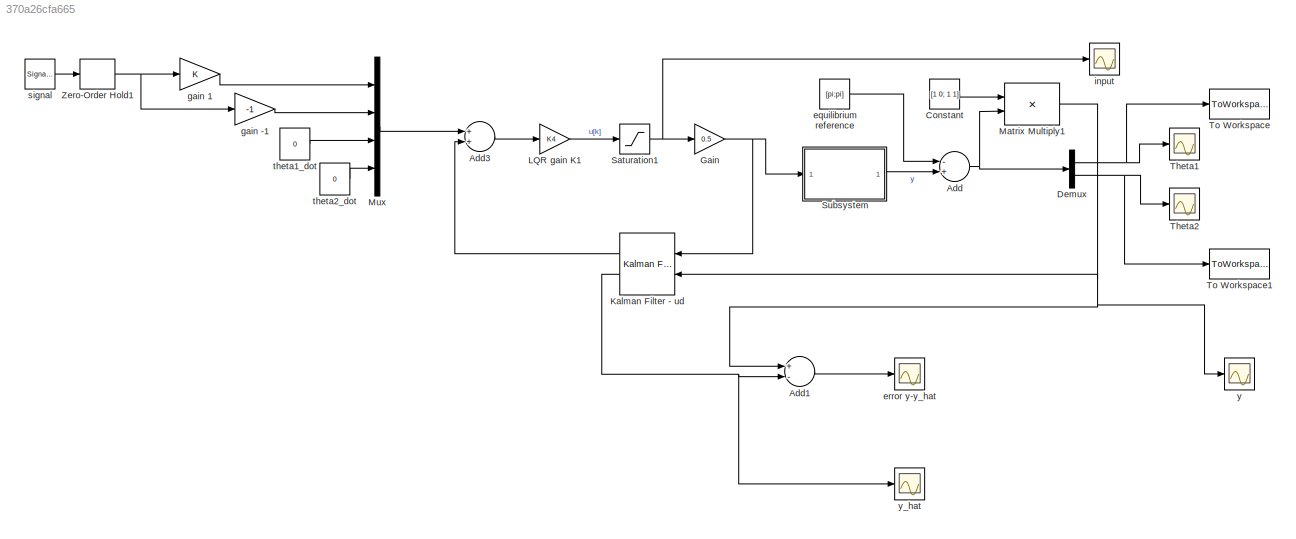
MODEL slx_370a26cfa665
KIND model
CONFIG AbsTol = auto
CONFIG EnableMultiTasking = on
CONFIG FixedStep = auto
CONFIG InitFcn = lin_discr_model_test
CONFIG MaxStep = auto
CONFIG MinStep = auto
CONFIG RelTol = 1e-3
CONFIG SampleTimeConstraint = Unconstrained
CONFIG Solver = ode45
CONFIG SolverName = ode45
CONFIG StartTime = 0.0
CONFIG StopTime = 10
BLOCK [Sum] Add
  InputSameDT = off
  Inputs = -+
  OutDataTypeStr = Inherit: Inherit via internal rule
  Ports = [2, 1]
  SaturateOnIntegerOverflow = off
BLOCK [Sum] Add1
  InputSameDT = off
  Inputs = +-
  OutDataTypeStr = Inherit: Inherit via internal rule
  Ports = [2, 1]
  SaturateOnIntegerOverflow = off
BLOCK [Sum] Add3
  InputSameDT = off
  OutDataTypeStr = Inherit: Inherit via internal rule
  Ports = [2, 1]
  SaturateOnIntegerOverflow = off
BLOCK [Constant] Constant
  Value = [1 0; 1 1]
BLOCK [Demux] Demux
  DisplayOption = bar
  Outputs = 2
  Ports = [1, 2]
BLOCK [Gain] Gain
  Gain = 0.5
  OutDataTypeStr = Inherit: Inherit via internal rule
  ParamDataTypeStr = Inherit: Inherit via internal rule
  SaturateOnIntegerOverflow = off
BLOCK [Reference] Kalman Filter - ud  REF=ctrlSharedLib/Kalman Filter
  Ports = [2, 2]
  SourceBlock = ctrlSharedLib/Kalman Filter
  SourceType = ctrlKalmanFilter
BLOCK [Gain] LQR gain K1
  Gain = K4
  Multiplication = Matrix(K*u)
  OutDataTypeStr = Inherit: Inherit via internal rule
  ParamDataTypeStr = Inherit: Inherit via internal rule
  SaturateOnIntegerOverflow = off
BLOCK [Product] Matrix Multiply1
  InputSameDT = off
  Multiplication = Matrix(*)
  OutDataTypeStr = Inherit: Inherit via internal rule
  Ports = [2, 1]
  RndMeth = Floor
  SaturateOnIntegerOverflow = off
BLOCK [Mux] Mux
  DisplayOption = bar
  Ports = [4, 1]
BLOCK [Saturate] Saturation1
  InputPortMap = u0
  LowerLimit = -1
  Ports = [1, 1]
  UpperLimit = 1
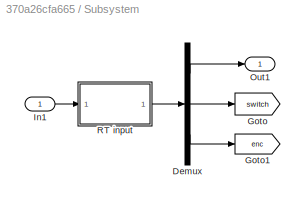
BLOCK [SubSystem] Subsystem
  Ports = [1, 1]
  RequestExecContextInheritance = off
  Variant = off
BLOCK [Demux] Subsystem/Demux
  DisplayOption = bar
  Outputs = [2 4 1]
  Ports = [1, 3]
BLOCK [Goto] Subsystem/Goto
  GotoTag = switch
  TagVisibility = global
BLOCK [Goto] Subsystem/Goto1
  GotoTag = enc
  TagVisibility = global
BLOCK [Inport] Subsystem/In1
  IconDisplay = Port number
BLOCK [Outport] Subsystem/Out1
  IconDisplay = Port number
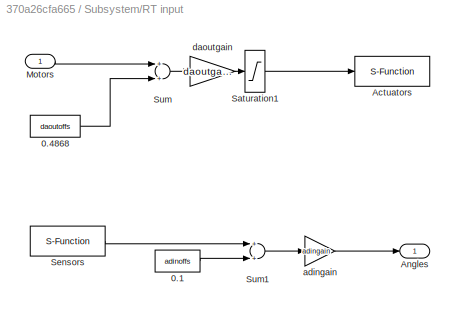
BLOCK [SubSystem] Subsystem/RT input
  Ports = [1, 1]
  RequestExecContextInheritance = off
  Variant = off
BLOCK [Constant] Subsystem/RT input/0.1
  Value = adinoffs
BLOCK [Constant] Subsystem/RT input/0.4868
  Value = daoutoffs
BLOCK [S-Function] Subsystem/RT input/Actuators
  EnableBusSupport = off
  FunctionName = sfusbout
  Parameters = Ts, fugihandle
  Ports = [1]
  SFcnIsStateOwnerBlock = off
  SFunctionDeploymentMode = off
BLOCK [Outport] Subsystem/RT input/Angles
  IconDisplay = Port number
BLOCK [Inport] Subsystem/RT input/Motors
  IconDisplay = Port number
BLOCK [Saturate] Subsystem/RT input/Saturation1
  InputPortMap = u0
  LowerLimit = -10
  Ports = [1, 1]
  UpperLimit = 10
BLOCK [S-Function] Subsystem/RT input/Sensors
  EnableBusSupport = off
  FunctionName = sfusbin
  Parameters = Ts, fugihandle, channels
  Ports = [0, 1]
  SFcnIsStateOwnerBlock = off
  SFunctionDeploymentMode = off
BLOCK [Sum] Subsystem/RT input/Sum
  Ports = [2, 1]
BLOCK [Sum] Subsystem/RT input/Sum1
  Ports = [2, 1]
BLOCK [Gain] Subsystem/RT input/adingain
  Gain = adingain
BLOCK [Gain] Subsystem/RT input/daoutgain
  Gain = daoutgain
BLOCK [Scope] Theta1
  NumInputPorts = 1
  Ports = [1]
  ScopeSpecificationString = Simulink.scopes.TimeScopeBlockCfg('CurrentConfiguration', extmgr.ConfigurationSet(extmgr.Configuration('Core','General UI',true),extmgr.Configuration('Core','Source UI',true),extmgr.Configuration('Sources','WiredSimulink',true,'DataLoggingVariableName','ScopeData1','DataLoggingSaveFormat','StructureWithTime','DataLoggingLimitDataPoints',true,'DataLoggingDecimation','1','DataLoggingDecimateData',tr...<+1732ch>
BLOCK [Scope] Theta2
  NumInputPorts = 1
  Ports = [1]
  ScopeSpecificationString = Simulink.scopes.TimeScopeBlockCfg('CurrentConfiguration', extmgr.ConfigurationSet(extmgr.Configuration('Core','General UI',true),extmgr.Configuration('Core','Source UI',true),extmgr.Configuration('Sources','WiredSimulink',true,'DataLoggingVariableName','ScopeData2','DataLoggingSaveFormat','StructureWithTime','DataLoggingLimitDataPoints',true,'DataLoggingDecimation','1','DataLoggingDecimateData',tr...<+1704ch>
BLOCK [ToWorkspace] To Workspace
  FixptAsFi = on
  MaxDataPoints = inf
  Ports = [1]
  SampleTime = -1
  Save2DSignal = 3-D array (concatenate along third dimension)
  SaveFormat = Timeseries
  VariableName = theta1
BLOCK [ToWorkspace] To Workspace1
  FixptAsFi = on
  MaxDataPoints = inf
  Ports = [1]
  SampleTime = -1
  Save2DSignal = 3-D array (concatenate along third dimension)
  SaveFormat = Timeseries
  VariableName = theta2
BLOCK [ZeroOrderHold] Zero-Order Hold1
  SampleTime = Ts
BLOCK [Constant] equilibrium reference
  SampleTime = Ts
  Value = [pi;pi]
BLOCK [Scope] error y-y_hat
  NumInputPorts = 1
  Ports = [1]
  ScopeSpecificationString = Simulink.scopes.TimeScopeBlockCfg('CurrentConfiguration', extmgr.ConfigurationSet(extmgr.Configuration('Core','General UI',true),extmgr.Configuration('Core','Source UI',true),extmgr.Configuration('Sources','WiredSimulink',true,'DataLoggingVariableName','ScopeData2'),extmgr.Configuration('Visuals','Time Domain',true,'SerializedDisplays',{struct('MinYLimReal','-0.73877','MaxYLimReal','0.51808','YLab...<+1445ch>
BLOCK [Gain] gain -1
  Gain = -1
  Multiplication = Matrix(K*u)
  OutDataTypeStr = Inherit: Inherit via internal rule
  ParamDataTypeStr = Inherit: Inherit via internal rule
  SaturateOnIntegerOverflow = off
BLOCK [Gain] gain 1
  Multiplication = Matrix(K*u)
  OutDataTypeStr = Inherit: Inherit via internal rule
  ParamDataTypeStr = Inherit: Inherit via internal rule
  SaturateOnIntegerOverflow = off
BLOCK [Scope] input
  NumInputPorts = 1
  Ports = [1]
  ScopeSpecificationString = Simulink.scopes.TimeScopeBlockCfg('CurrentConfiguration', extmgr.ConfigurationSet(extmgr.Configuration('Core','General UI',true),extmgr.Configuration('Core','Source UI',true),extmgr.Configuration('Sources','WiredSimulink',true,'DataLoggingSaveFormat','StructureWithTime','DataLoggingLimitDataPoints',true,'DataLoggingDecimation','1','DataLoggingDecimateData',true),extmgr.Configuration('Visuals','Tim...<+1651ch>
BLOCK [SignalGenerator] signal
  Amplitude = 0
  Ports = [0, 1]
  WaveForm = square
BLOCK [Constant] theta1_dot
  Value = 0
BLOCK [Constant] theta2_dot
  Value = 0
BLOCK [Scope] y
  NumInputPorts = 1
  Ports = [1]
  ScopeSpecificationString = Simulink.scopes.TimeScopeBlockCfg('CurrentConfiguration', extmgr.ConfigurationSet(extmgr.Configuration('Core','General UI',true),extmgr.Configuration('Core','Source UI',true),extmgr.Configuration('Sources','WiredSimulink',true,'DataLoggingVariableName','ScopeData1'),extmgr.Configuration('Visuals','Time Domain',true,'SerializedDisplays',{struct('MinYLimReal','-1.14102','MaxYLimReal','3.4071','YLabe...<+1421ch>
BLOCK [Scope] y_hat
  NumInputPorts = 1
  Ports = [1]
  ScopeSpecificationString = Simulink.scopes.TimeScopeBlockCfg('CurrentConfiguration', extmgr.ConfigurationSet(extmgr.Configuration('Core','General UI',true),extmgr.Configuration('Core','Source UI',true),extmgr.Configuration('Sources','WiredSimulink',true,'DataLoggingVariableName','ScopeData3'),extmgr.Configuration('Visuals','Time Domain',true,'SerializedDisplays',{struct('MinYLimReal','-1.14113','MaxYLimReal','3.4073','YLabe...<+1431ch>
LINE Add1:1 -> error y-y_hat:1
LINE Add3:1 -> LQR gain K1:1
NET Add:1 -> Demux:1, Matrix Multiply1:2
LINE Constant:1 -> Matrix Multiply1:1
NET Demux:1 -> Theta1:1, To Workspace:1
NET Demux:2 -> Theta2:1, To Workspace1:1
NET Gain:1 -> Kalman Filter - ud:1, Subsystem:1
LINE Kalman Filter - ud:1 -> Add3:2
NET Kalman Filter - ud:2 -> Add1:2, y_hat:1
LINE LQR gain K1:1 -> Saturation1:1
NET Matrix Multiply1:1 -> Add1:1, Kalman Filter - ud:2, y:1
LINE Mux:1 -> Add3:1
NET Saturation1:1 -> Gain:1, input:1
LINE Subsystem/Demux:1 -> Subsystem/Out1:1
LINE Subsystem/Demux:2 -> Subsystem/Goto:1
LINE Subsystem/Demux:3 -> Subsystem/Goto1:1
LINE Subsystem/In1:1 -> Subsystem/RT input:1
LINE Subsystem/RT input/0.1:1 -> Subsystem/RT input/Sum1:2
LINE Subsystem/RT input/0.4868:1 -> Subsystem/RT input/Sum:2
LINE Subsystem/RT input/Motors:1 -> Subsystem/RT input/Sum:1
LINE Subsystem/RT input/Saturation1:1 -> Subsystem/RT input/Actuators:1
LINE Subsystem/RT input/Sensors:1 -> Subsystem/RT input/Sum1:1
LINE Subsystem/RT input/Sum1:1 -> Subsystem/RT input/adingain:1
LINE Subsystem/RT input/Sum:1 -> Subsystem/RT input/daoutgain:1
LINE Subsystem/RT input/adingain:1 -> Subsystem/RT input/Angles:1
LINE Subsystem/RT input/daoutgain:1 -> Subsystem/RT input/Saturation1:1
LINE Subsystem/RT input:1 -> Subsystem/Demux:1
LINE Subsystem:1 -> Add:2
NET Zero-Order Hold1:1 -> gain -1:1, gain 1:1
LINE equilibrium reference:1 -> Add:1
LINE gain -1:1 -> Mux:2
LINE gain 1:1 -> Mux:1
LINE signal:1 -> Zero-Order Hold1:1
LINE theta1_dot:1 -> Mux:3
LINE theta2_dot:1 -> Mux:4
note: NET lines group one-source signal fan-out (src -> all destinations, sorted); 1:1 wires keep LINE
